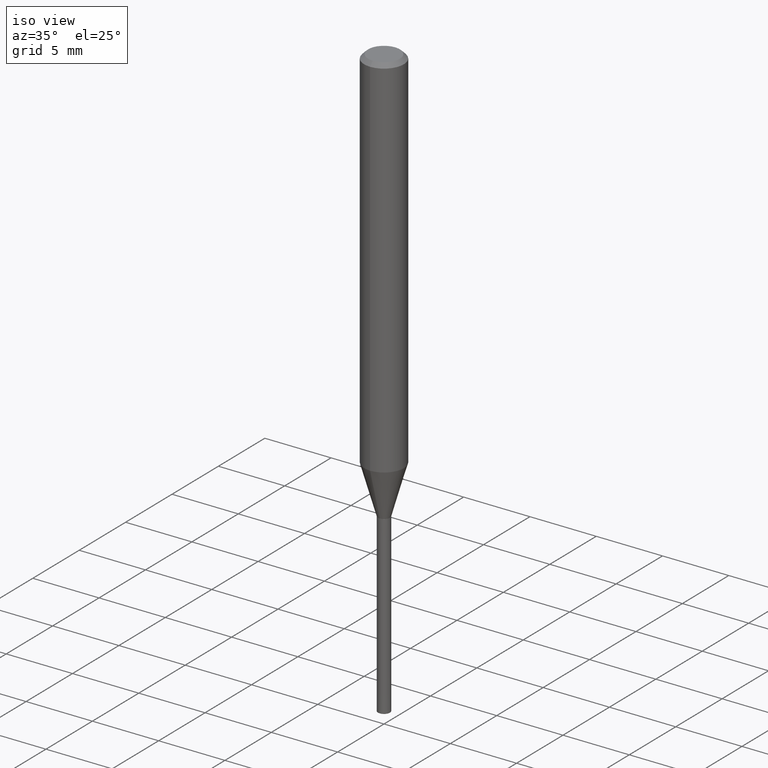
[diagram: clean part render]
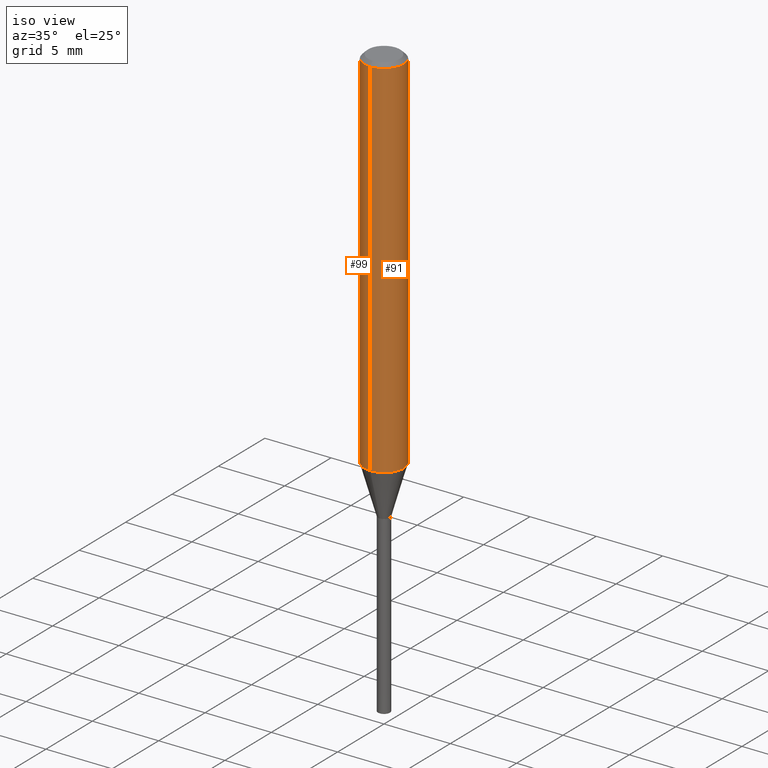
[diagram: same view with one multi-face feature highlighted, each face labeled with its STEP entity id]
A machine part, iso view. The highlighted faces form ONE feature: a constant-radius fillet chain: 2 tangent blend faces with common blend radius 1.5 mm. The faces share edges in the B-rep.
Their STEP definitions:
[1] entity #91 (Cylinder):
#91=ADVANCED_FACE('',(#226),#227,.T.);
#93=EDGE_CURVE('',#109,#177,#229,.T.);
#109=VERTEX_POINT('',#248);
#131=EDGE_CURVE('',#109,#203,#274,.T.);
#147=EDGE_CURVE('',#161,#203,#292,.T.);
#161=VERTEX_POINT('',#307);
#177=VERTEX_POINT('',#325);
#195=EDGE_CURVE('',#177,#161,#345,.T.);
#203=VERTEX_POINT('',#353);
#226=FACE_OUTER_BOUND('',#368,.T.);
#227=CYLINDRICAL_SURFACE('',#369,1.5);
#229=LINE('',#372,#373);
#248=CARTESIAN_POINT('',(0.0,1.5,-0.300000000000001));
#274=CIRCLE('',#426,1.5);
#292=LINE('',#448,#449);
#307=CARTESIAN_POINT('',(1.83690953073357E-016,-1.5,-27.838));
#325=CARTESIAN_POINT('',(0.0,1.5,-27.838));
#345=CIRCLE('',#518,1.5);
#353=CARTESIAN_POINT('',(1.83690953073357E-016,-1.5,-0.300000000000001));
#368=EDGE_LOOP('',(#536,#537,#538,#539));
#369=AXIS2_PLACEMENT_3D('',#540,#541,#542);
#372=CARTESIAN_POINT('',(-1.83690953073357E-016,1.5,-14.069));
#373=VECTOR('',#543,1.0);
#426=AXIS2_PLACEMENT_3D('',#612,#613,#614);
#448=CARTESIAN_POINT('',(1.83690953073357E-016,-1.5,-14.069));
#449=VECTOR('',#637,1.0);
#518=AXIS2_PLACEMENT_3D('',#696,#697,#698);
#536=ORIENTED_EDGE('',*,*,#93,.F.);
#537=ORIENTED_EDGE('',*,*,#131,.T.);
#538=ORIENTED_EDGE('',*,*,#147,.F.);
#539=ORIENTED_EDGE('',*,*,#195,.F.);
#540=CARTESIAN_POINT('',(0.0,0.0,-14.069));
#541=DIRECTION('',(-0.0,-0.0,1.0));
#542=DIRECTION('',(0.0,1.0,0.0));
#543=DIRECTION('',(0.0,0.0,-1.0));
#612=CARTESIAN_POINT('',(0.0,0.0,-0.300000000000001));
#613=DIRECTION('',(0.0,0.0,-1.0));
#614=DIRECTION('',(0.0,1.0,0.0));
#637=DIRECTION('',(-0.0,-0.0,1.0));
#696=CARTESIAN_POINT('',(0.0,0.0,-27.838));
#697=DIRECTION('',(0.0,0.0,-1.0));
#698=DIRECTION('',(0.0,1.0,0.0));
[2] entity #99 (Cylinder):
#93=EDGE_CURVE('',#109,#177,#229,.T.);
#99=ADVANCED_FACE('',(#235),#236,.T.);
#109=VERTEX_POINT('',#248);
#123=EDGE_CURVE('',#203,#109,#265,.T.);
#125=EDGE_CURVE('',#161,#177,#267,.T.);
#147=EDGE_CURVE('',#161,#203,#292,.T.);
#161=VERTEX_POINT('',#307);
#177=VERTEX_POINT('',#325);
#203=VERTEX_POINT('',#353);
#229=LINE('',#372,#373);
#235=FACE_OUTER_BOUND('',#382,.T.);
#236=CYLINDRICAL_SURFACE('',#383,1.5);
#248=CARTESIAN_POINT('',(0.0,1.5,-0.300000000000001));
#265=CIRCLE('',#414,1.5);
#267=CIRCLE('',#417,1.5);
#292=LINE('',#448,#449);
#307=CARTESIAN_POINT('',(1.83690953073357E-016,-1.5,-27.838));
#325=CARTESIAN_POINT('',(0.0,1.5,-27.838));
#353=CARTESIAN_POINT('',(1.83690953073357E-016,-1.5,-0.300000000000001));
#372=CARTESIAN_POINT('',(-1.83690953073357E-016,1.5,-14.069));
#373=VECTOR('',#543,1.0);
#382=EDGE_LOOP('',(#549,#550,#551,#552));
#383=AXIS2_PLACEMENT_3D('',#553,#554,#555);
#414=AXIS2_PLACEMENT_3D('',#597,#598,#599);
#417=AXIS2_PLACEMENT_3D('',#600,#601,#602);
#448=CARTESIAN_POINT('',(1.83690953073357E-016,-1.5,-14.069));
#449=VECTOR('',#637,1.0);
#543=DIRECTION('',(0.0,0.0,-1.0));
#549=ORIENTED_EDGE('',*,*,#93,.T.);
#550=ORIENTED_EDGE('',*,*,#125,.F.);
#551=ORIENTED_EDGE('',*,*,#147,.T.);
#552=ORIENTED_EDGE('',*,*,#123,.T.);
#553=CARTESIAN_POINT('',(0.0,0.0,-14.069));
#554=DIRECTION('',(-0.0,-0.0,1.0));
#555=DIRECTION('',(0.0,1.0,0.0));
#597=CARTESIAN_POINT('',(0.0,0.0,-0.300000000000001));
#598=DIRECTION('',(0.0,0.0,-1.0));
#599=DIRECTION('',(0.0,1.0,0.0));
#600=CARTESIAN_POINT('',(0.0,0.0,-27.838));
#601=DIRECTION('',(0.0,0.0,-1.0));
#602=DIRECTION('',(0.0,1.0,0.0));
#637=DIRECTION('',(-0.0,-0.0,1.0));